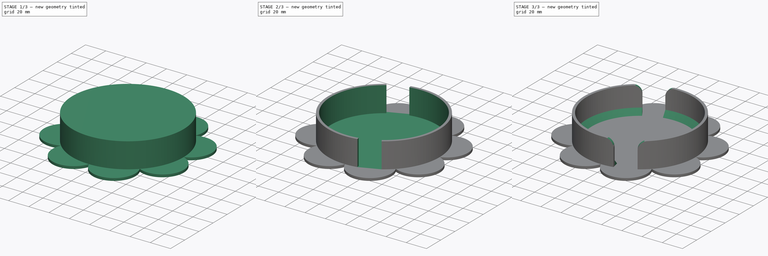
[diagram: build sequence overview — one tinted view per stage of 3, left to right]
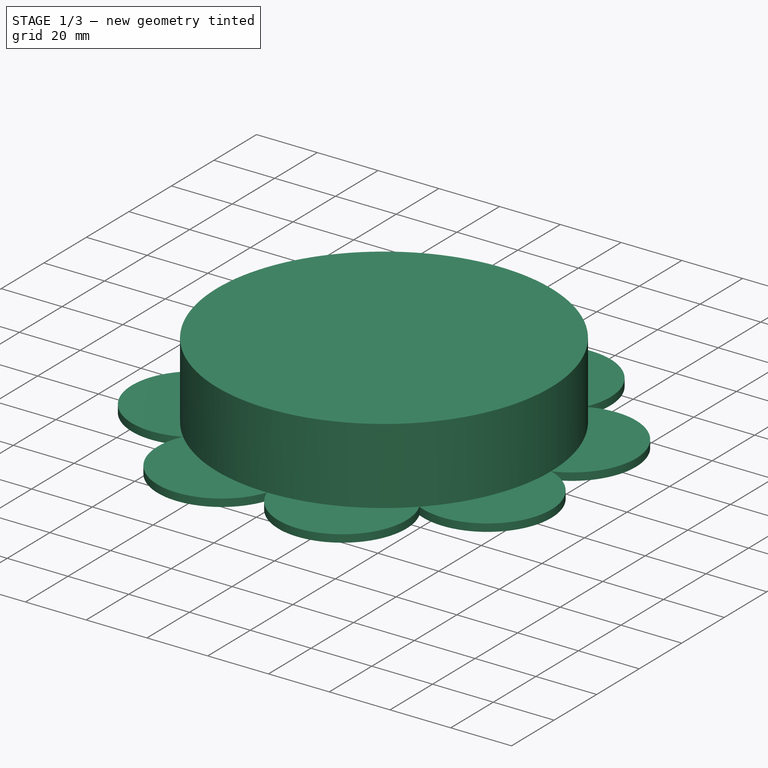
[diagram: stage 1 of 3 — iso view after this stage's code; geometry added in this stage tinted green]
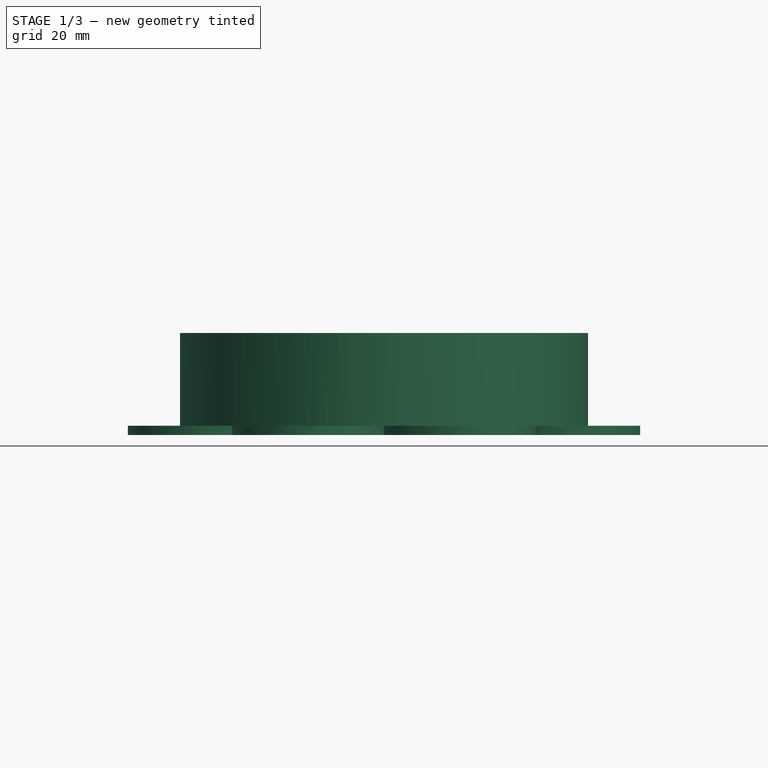
[diagram: stage 1 of 3 — front view after this stage's code; geometry added in this stage tinted green]
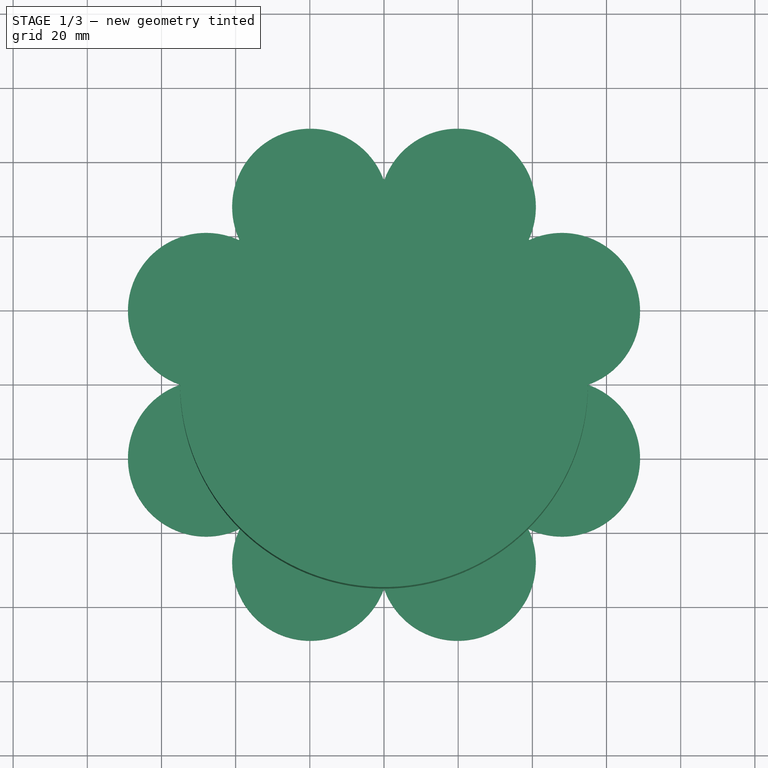
[diagram: stage 1 of 3 — top view after this stage's code; geometry added in this stage tinted green]
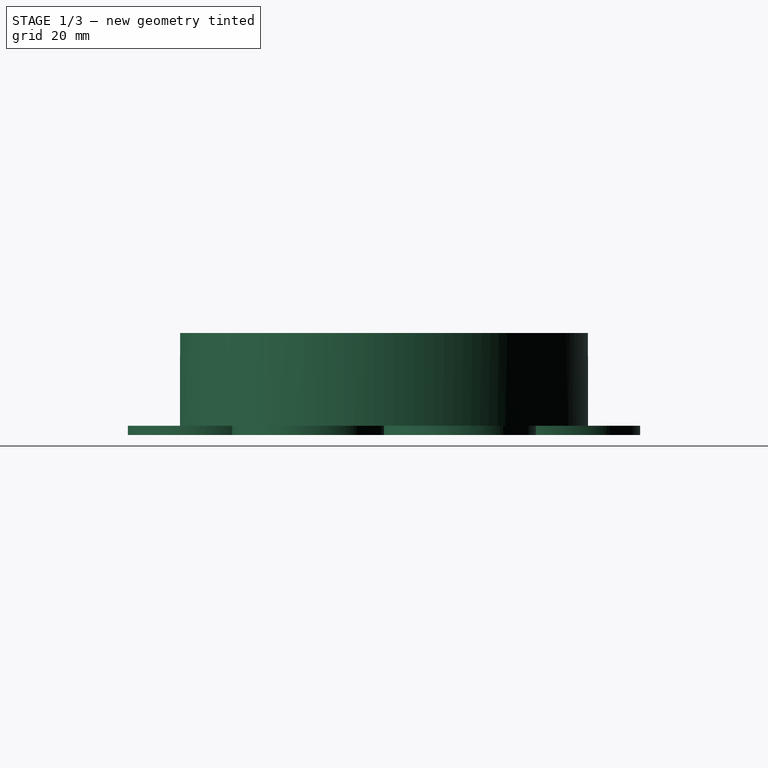
[diagram: stage 1 of 3 — right view after this stage's code; geometry added in this stage tinted green]
FCSTD DOCUMENT  (FreeCAD 1.0R39109 (Git))
Label: Holder
License: All rights reserved
LicenseURL: https://en.wikipedia.org/wiki/All_rights_reserved
objects: Sketcher::SketchObject×3, PartDesign::Pad×2, PartDesign::Pocket×1, PartDesign::Fillet×1, PartDesign::Chamfer×1, PartDesign::Body×1
note: 22 computed .brp shape members not serialized (recipe doc carries the construction recipe); baked Part::Feature solids carry a one-line shape summary decoded from their .brp

FEATURE [Sketcher::SketchObject] Sketch001
  ArcFitTolerance = 1e-06
  AttachmentSupport = -> [XY_Plane]
  FullyConstrained = true
  MakeInternals = false
  MapMode = 5
  sketch-geometry (18):
    g0: ArcOfCircle CenterX=19.8701 CenterY=47.9708 CenterZ=0 NormalX=0 NormalY=0 NormalZ=1 AngleXU=0 Radius=21.0768 StartAngle=5.83781 EndAngle=9.08476
    g1: ArcOfCircle CenterX=47.9708 CenterY=19.8701 CenterZ=0 NormalX=0 NormalY=0 NormalZ=1 AngleXU=0 Radius=21.0768 StartAngle=5.05241 EndAngle=8.29936
    g2: ArcOfCircle CenterX=47.9708 CenterY=-19.8701 CenterZ=0 NormalX=0 NormalY=0 NormalZ=1 AngleXU=0 Radius=21.0768 StartAngle=4.26701 EndAngle=7.51396
    g3: ArcOfCircle CenterX=19.8701 CenterY=-47.9708 CenterZ=0 NormalX=0 NormalY=0 NormalZ=1 AngleXU=0 Radius=21.0768 StartAngle=3.48161 EndAngle=6.72856
    g4: ArcOfCircle CenterX=-19.8701 CenterY=-47.9708 CenterZ=0 NormalX=0 NormalY=0 NormalZ=1 AngleXU=0 Radius=21.0768 StartAngle=2.69621 EndAngle=5.94317
    g5: ArcOfCircle CenterX=-47.9708 CenterY=-19.8701 CenterZ=0 NormalX=0 NormalY=0 NormalZ=1 AngleXU=0 Radius=21.0768 StartAngle=1.91082 EndAngle=5.15777
    g6: ArcOfCircle CenterX=-47.9708 CenterY=19.8701 CenterZ=0 NormalX=0 NormalY=0 NormalZ=1 AngleXU=0 Radius=21.0768 StartAngle=1.12542 EndAngle=4.37237
    g7: ArcOfCircle CenterX=-19.8701 CenterY=47.9708 CenterZ=0 NormalX=0 NormalY=0 NormalZ=1 AngleXU=0 Radius=21.0768 StartAngle=0.34002 EndAngle=3.58697
    g8: LineSegment [constr] StartX=-55 StartY=0 StartZ=0 EndX=-38.8909 EndY=38.8909 EndZ=0
    g9: LineSegment [constr] StartX=-38.8909 StartY=38.8909 StartZ=0 EndX=-7.1e-15 EndY=55 EndZ=0
    g10: LineSegment [constr] StartX=-7.1e-15 StartY=55 StartZ=0 EndX=38.8909 EndY=38.8909 EndZ=0
    g11: LineSegment [constr] StartX=38.8909 StartY=38.8909 StartZ=0 EndX=55 EndY=0 EndZ=0
    g12: LineSegment [constr] StartX=55 StartY=0 StartZ=0 EndX=38.8909 EndY=-38.8909 EndZ=0
    g13: LineSegment [constr] StartX=0 StartY=-55 StartZ=0 EndX=38.8909 EndY=-38.8909 EndZ=0
    g14: LineSegment [constr] StartX=0 StartY=-55 StartZ=0 EndX=-38.8909 EndY=-38.8909 EndZ=0
    g15: LineSegment [constr] StartX=-38.8909 StartY=-38.8909 StartZ=0 EndX=-55 EndY=0 EndZ=0
    g16: Circle [constr] CenterX=0 CenterY=0 CenterZ=0 NormalX=0 NormalY=0 NormalZ=1 AngleXU=0 Radius=73
    g17: Circle [constr] CenterX=0 CenterY=0 CenterZ=0 NormalX=0 NormalY=0 NormalZ=1 AngleXU=0 Radius=55
  constraints (52):
    c: Coincident(g1,g0)
    c: Coincident(g2,g1)
    c: Coincident(g3,g2)
    c: Coincident(g4,g3)
    c: Coincident(g5,g4)
    c: Coincident(g6,g5)
    c: Coincident(g7,g6)
    c: Coincident(g7,g0)
    c: PointOnObject(g0,g-2)
    c: PointOnObject(g1,g-1)
    c: PointOnObject(g3,g-2)
    c: PointOnObject(g5,g-1)
    c: Coincident(g8,g5)
    c: Coincident(g8,g6)
    c: Coincident(g9,g6)
    c: Coincident(g9,g0)
    c: Equal(g8,g9)
    c: Coincident(g10,g0)
    c: Coincident(g10,g0)
    c: Coincident(g11,g0)
    c: Coincident(g11,g1)
    c: Coincident(g12,g1)
    c: Coincident(g12,g2)
    c: Coincident(g13,g3)
    c: Coincident(g13,g2)
    c: Coincident(g14,g3)
    c: Coincident(g14,g4)
    c: Coincident(g15,g4)
    c: Coincident(g15,g5)
    c: Equal(g14,g15)
    c: Equal(g12,g13)
    c: Equal(g10,g11)
    c: Coincident(g16,g-1)
    c: Tangent(g1,g16)
    c: Tangent(g2,g16)
    c: Tangent(g3,g16)
    c: Tangent(g4,g16)
    c: Tangent(g5,g16)
    c: Tangent(g6,g16)
    c: Tangent(g7,g16)
    c: Tangent(g0,g16)
    c: Coincident(g17,g16)
    c: Diameter(g17) = 110
    c: PointOnObject(g0,g17)
    c: PointOnObject(g0,g17)
    c: PointOnObject(g6,g17)
    c: PointOnObject(g5,g17)
    c: PointOnObject(g4,g17)
    c: PointOnObject(g3,g17)
    c: PointOnObject(g2,g17)
    c: PointOnObject(g1,g17)
    c: Distance(g17,g16) = 18
FEATURE [PartDesign::Pad] Pad001
  Direction = (0,0,1)
  Length = 2.5
  Length2 = 10
  Profile = -> Sketch001
  ReferenceAxis = -> Sketch001 [N_Axis]
  Refine = true
  Suppressed = false
  Type = 0
FEATURE [Sketcher::SketchObject] Sketch
  ArcFitTolerance = 1e-06
  AttachmentSupport = -> [Pad001]
  ExternalGeometry = -> [Pad001]
  FullyConstrained = true
  MakeInternals = false
  MapMode = 5
  Placement = pos=(0,0,2.5) rot=(0,0,1;0rad)
  sketch-geometry (1):
    g0: Circle CenterX=0 CenterY=0 CenterZ=0 NormalX=0 NormalY=0 NormalZ=1 AngleXU=0 Radius=55
  constraints (2):
    c: Coincident(g0,g-1)
    c: PointOnObject(g-3,g0)
FEATURE [PartDesign::Pad] Pad
  BaseFeature = -> Pad001
  Direction = (0,0,1)
  Length = 25
  Length2 = 10
  Profile = -> Sketch
  ReferenceAxis = -> Sketch [N_Axis]
  Refine = true
  Suppressed = false
  Type = 0
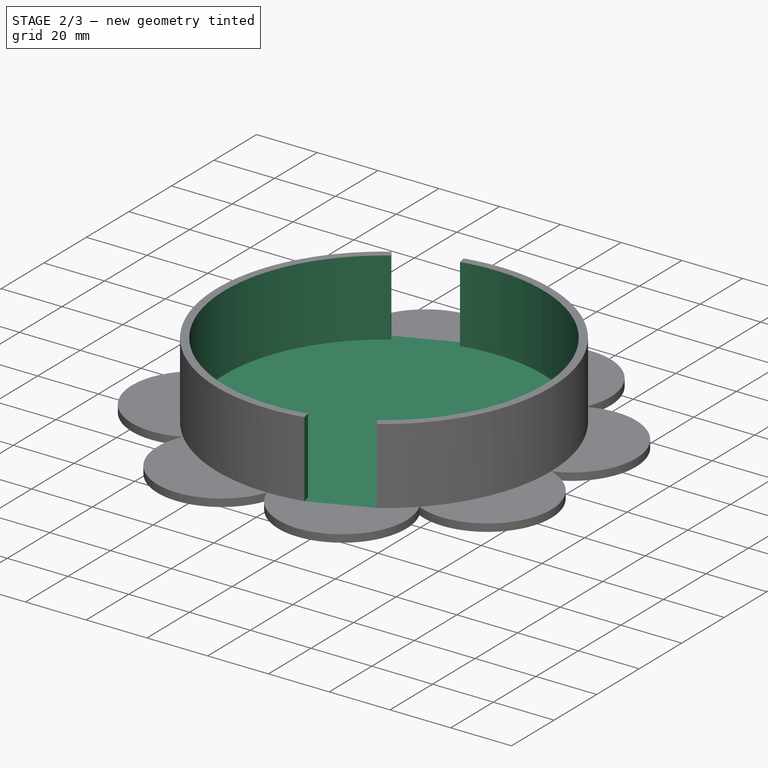
[diagram: stage 2 of 3 — iso view after this stage's code; geometry added in this stage tinted green]
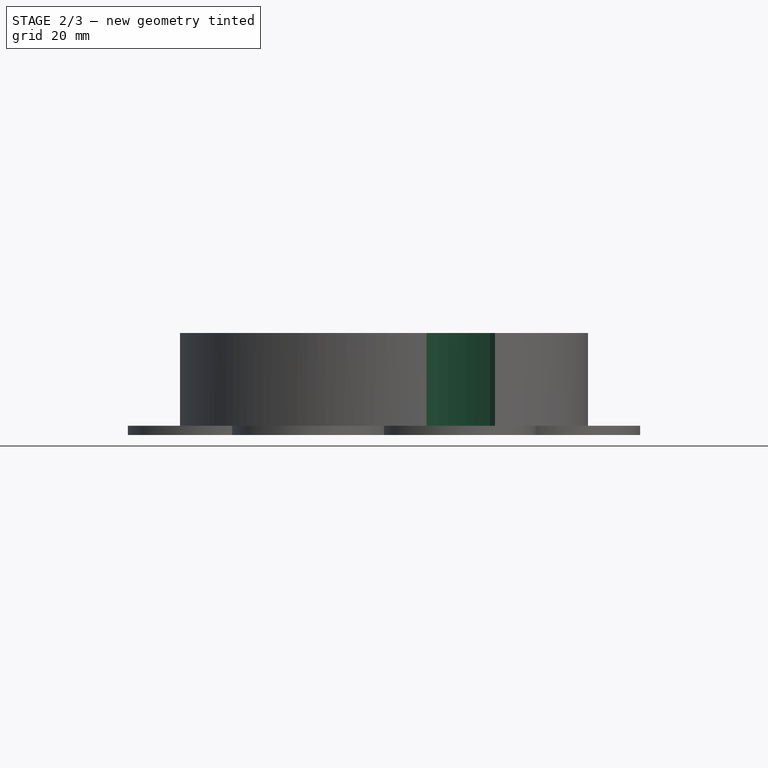
[diagram: stage 2 of 3 — front view after this stage's code; geometry added in this stage tinted green]
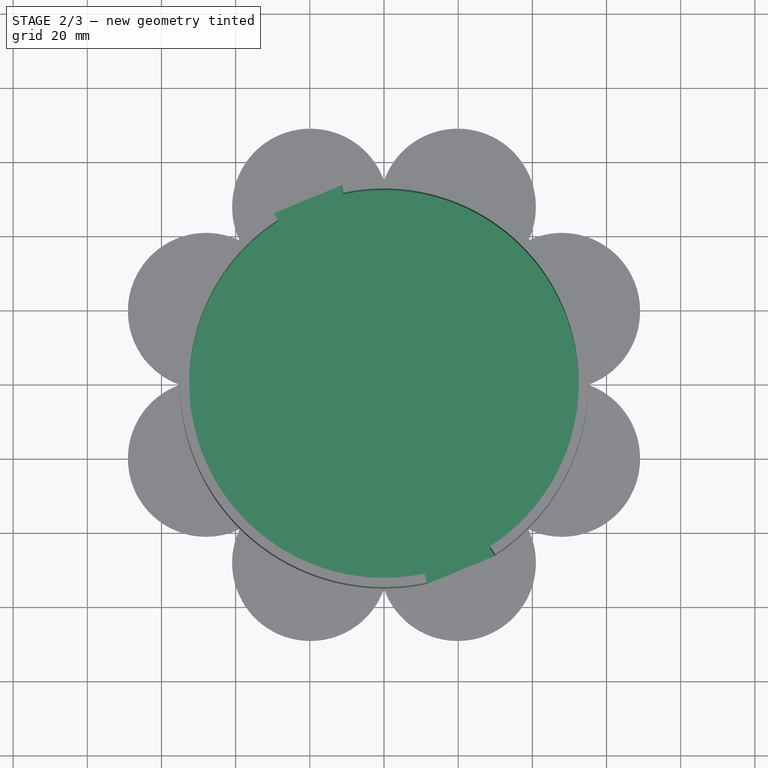
[diagram: stage 2 of 3 — top view after this stage's code; geometry added in this stage tinted green]
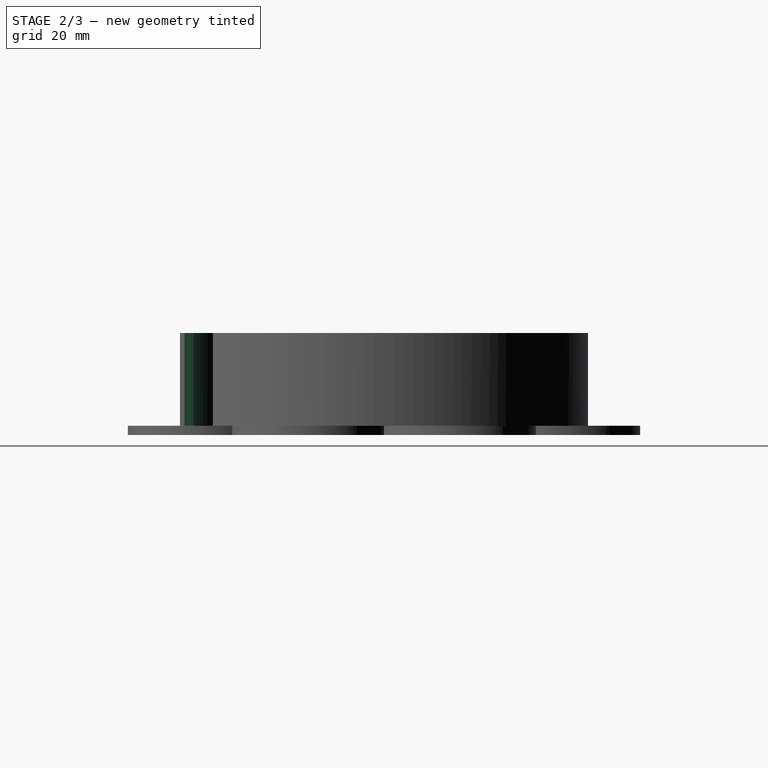
[diagram: stage 2 of 3 — right view after this stage's code; geometry added in this stage tinted green]
FEATURE [Sketcher::SketchObject] Sketch002
  ArcFitTolerance = 1e-06
  AttachmentSupport = -> [Pad]
  ExternalGeometry = -> [Pad]
  FullyConstrained = true
  MakeInternals = false
  MapMode = 5
  Placement = pos=(0,0,27.5) rot=(0,0,1;0rad)
  sketch-geometry (14):
    g0: LineSegment StartX=10.9372 StartY=-51.3481 StartZ=0 EndX=11.458 EndY=-53.7933 EndZ=0
    g1: LineSegment StartX=28.5749 StartY=-44.0423 StartZ=0 EndX=29.9356 EndY=-46.1396 EndZ=0
    g2: ArcOfCircle CenterX=0 CenterY=0 CenterZ=0 NormalX=0 NormalY=0 NormalZ=1 AngleXU=0 Radius=55 StartAngle=4.92225 EndAngle=5.28792
    g3: LineSegment [constr] StartX=0 StartY=-55 StartZ=0 EndX=10.9372 EndY=-51.3481 EndZ=0
    g4: LineSegment [constr] StartX=38.8909 StartY=-38.8909 StartZ=0 EndX=28.5749 EndY=-44.0423 EndZ=0
    g5: LineSegment [constr] StartX=-29.9356 StartY=46.1396 StartZ=0 EndX=29.9356 EndY=-46.1396 EndZ=0
    g6: LineSegment [constr] StartX=-11.458 StartY=53.7933 StartZ=0 EndX=11.458 EndY=-53.7933 EndZ=0
    g7: LineSegment [constr] StartX=-38.8909 StartY=38.8909 StartZ=0 EndX=-28.5749 EndY=44.0423 EndZ=0
    g8: LineSegment [constr] StartX=-10.9372 StartY=51.3481 StartZ=0 EndX=3.6e-15 EndY=55 EndZ=0
    g9: LineSegment StartX=-29.9356 StartY=46.1396 StartZ=0 EndX=-28.5749 EndY=44.0423 EndZ=0
    g10: LineSegment StartX=-11.458 StartY=53.7933 StartZ=0 EndX=-10.9372 EndY=51.3481 EndZ=0
    g11: ArcOfCircle CenterX=0 CenterY=0 CenterZ=0 NormalX=0 NormalY=0 NormalZ=1 AngleXU=0 Radius=52.5 StartAngle=5.28792 EndAngle=8.06385
    g12: ArcOfCircle CenterX=0 CenterY=0 CenterZ=0 NormalX=0 NormalY=0 NormalZ=1 AngleXU=0 Radius=52.5 StartAngle=2.14633 EndAngle=4.92225
    g13: ArcOfCircle CenterX=0 CenterY=0 CenterZ=0 NormalX=0 NormalY=0 NormalZ=1 AngleXU=0 Radius=55 StartAngle=1.78066 EndAngle=2.14633
  constraints (36):
    c: PointOnObject(g0,g-3)
    c: Distance(g0,g1) = 20
    c: Equal(g4,g3)
    c: Coincident(g-4,g3)
    c: Coincident(g4,g-4)
    c: PointOnObject(g5,g-3)
    c: Coincident(g6,g0)
    c: Coincident(g2,g0)
    c: Coincident(g0,g3)
    c: PointOnObject(g0,g6)
    c: PointOnObject(g1,g5)
    c: Coincident(g2,g1)
    c: Coincident(g4,g1)
    c: PointOnObject(g2,g5)
    c: Coincident(g2,g-1)
    c: PointOnObject(g2,g6)
    c: Coincident(g7,g-5)
    c: Coincident(g8,g-5)
    c: Equal(g8,g7)
    c: Coincident(g9,g5)
    c: PointOnObject(g9,g5)
    c: Coincident(g10,g6)
    c: PointOnObject(g10,g6)
    c: Coincident(g8,g10)
    c: Coincident(g7,g9)
    c: Coincident(g11,g2)
    c: Coincident(g11,g8)
    c: Coincident(g11,g1)
    c: Coincident(g12,g2)
    c: Coincident(g12,g0)
    c: Coincident(g12,g7)
    c: Distance(g10,g10) = 2.5
    c: Coincident(g13,g2)
    c: Coincident(g13,g5)
    c: Coincident(g13,g6)
    c: Coincident(g1,g5)
FEATURE [PartDesign::Pocket] Pocket
  BaseFeature = -> Pad
  Direction = (0,0,-1)
  Length = 0
  Length2 = 5
  Profile = -> Sketch002
  ReferenceAxis = -> Sketch002 [N_Axis]
  Refine = true
  Suppressed = false
  Type = 3
  UpToFace = -> Pad [Face18]
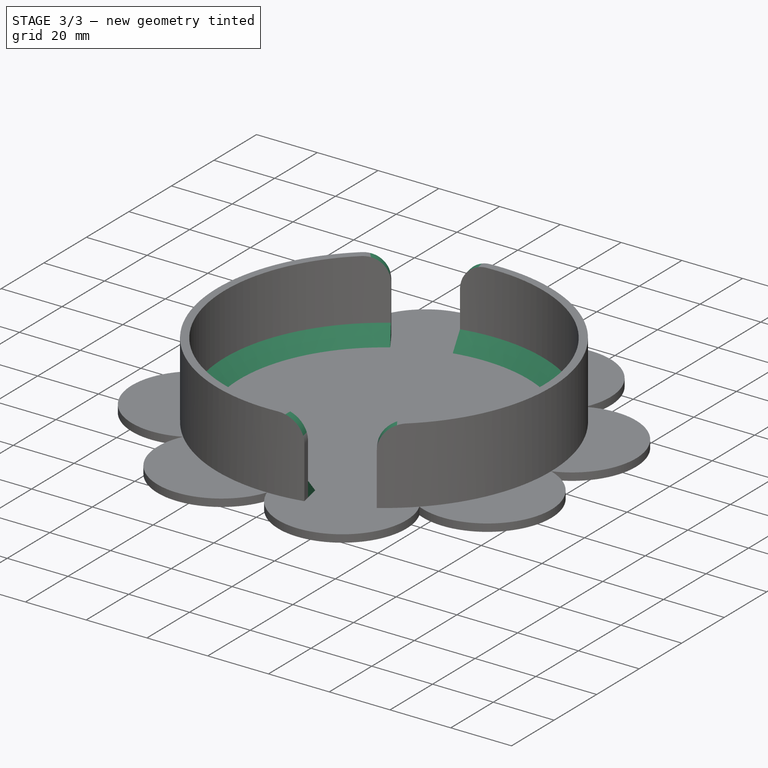
[diagram: stage 3 of 3 — iso view after this stage's code; geometry added in this stage tinted green]
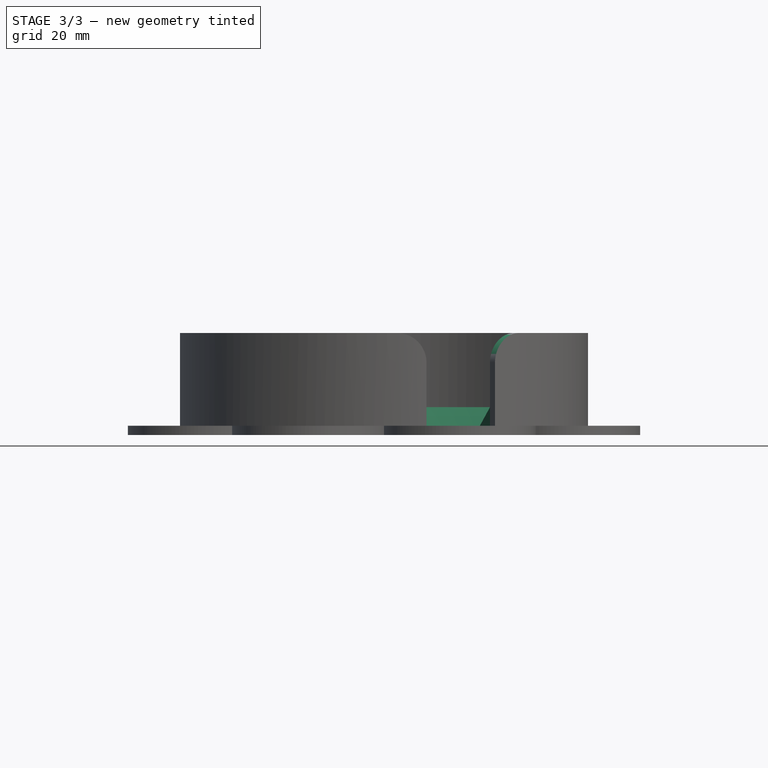
[diagram: stage 3 of 3 — front view after this stage's code; geometry added in this stage tinted green]
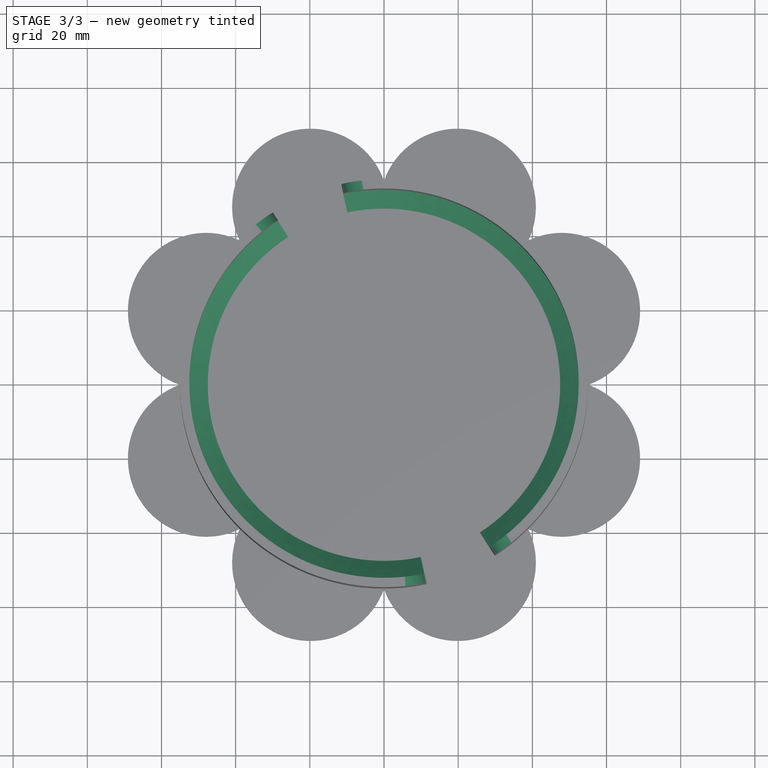
[diagram: stage 3 of 3 — top view after this stage's code; geometry added in this stage tinted green]
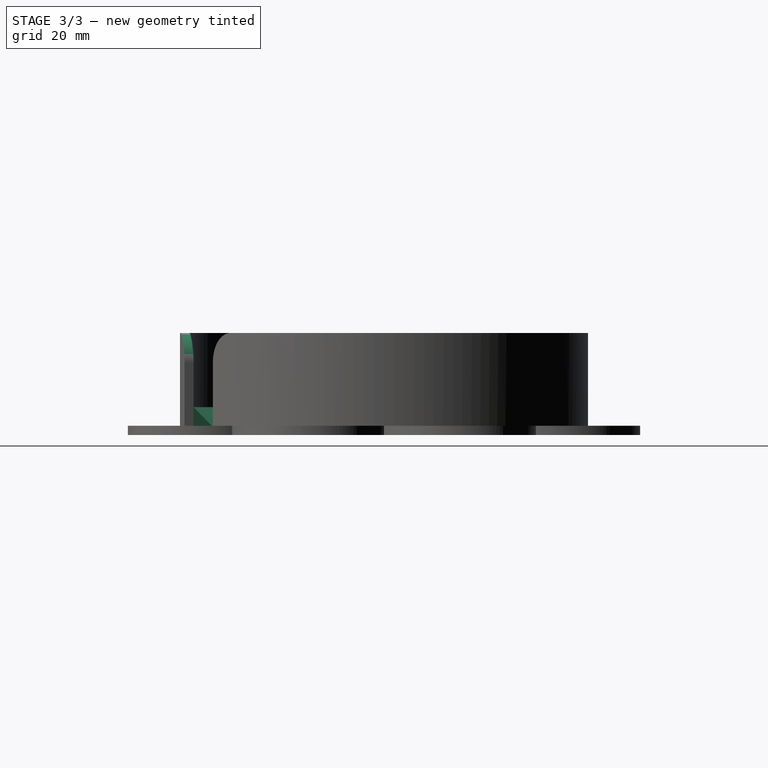
[diagram: stage 3 of 3 — right view after this stage's code; geometry added in this stage tinted green]
FEATURE [PartDesign::Fillet] Fillet
  Base = -> Pocket [Edge42,Edge49,Edge36,Edge53]
  BaseFeature = -> Pocket
  Radius = 8
  Refine = true
  SupportTransform = false
  Suppressed = false
  UseAllEdges = false
FEATURE [PartDesign::Chamfer] Chamfer
  Angle = 45
  Base = -> Fillet [Edge19,Edge23]
  BaseFeature = -> Fillet
  ChamferType = 0
  FlipDirection = false
  Refine = true
  Size = 5
  Size2 = 1
  SupportTransform = false
  Suppressed = false
  UseAllEdges = false
FEATURE [PartDesign::Body] Body
  AllowCompound = false
  Group = -> [Sketch001,Pad001,Sketch,Pad,Sketch002,Pocket,Fillet,Chamfer]
  Origin = -> Origin
  Tip = -> Chamfer
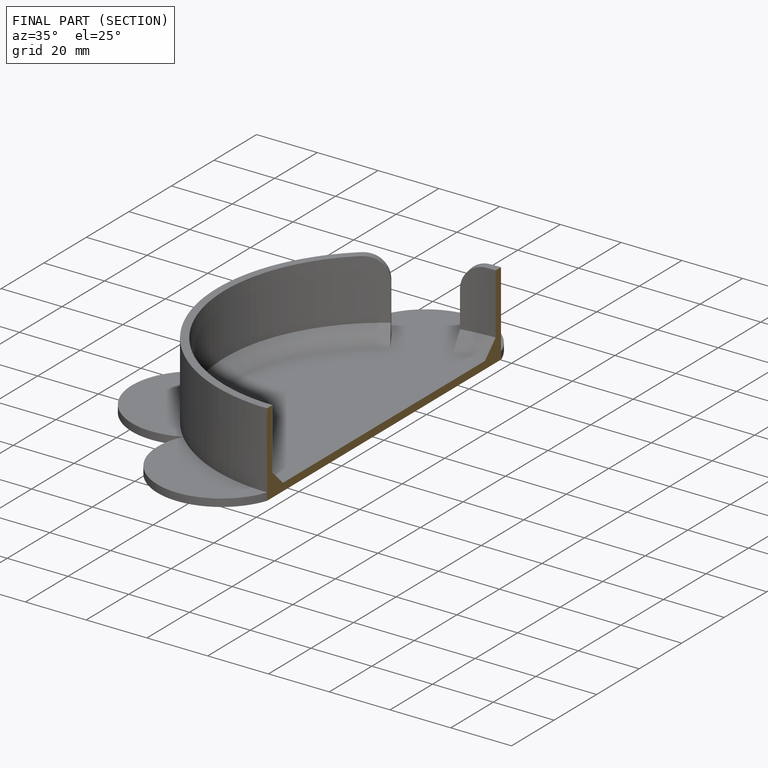
[diagram: finished part — half-section view (interior)]
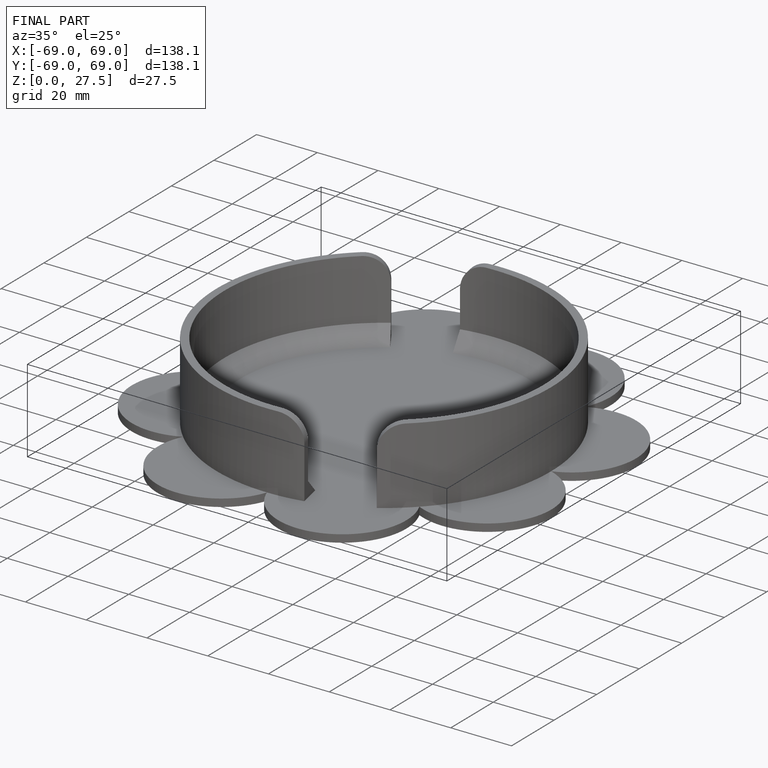
[diagram: finished part — iso view with bounding-box wireframe]
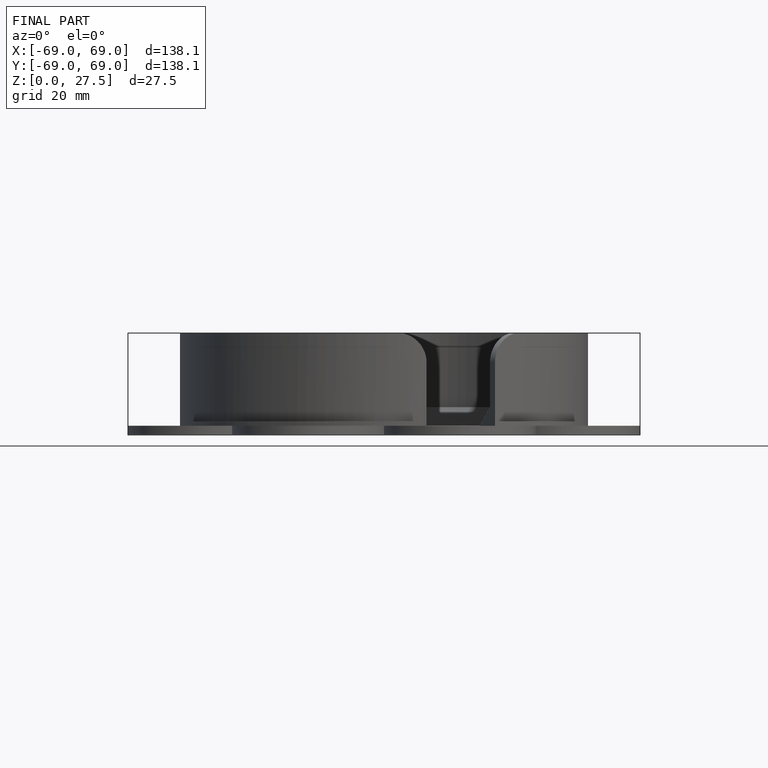
[diagram: finished part — front view with bounding-box wireframe]
